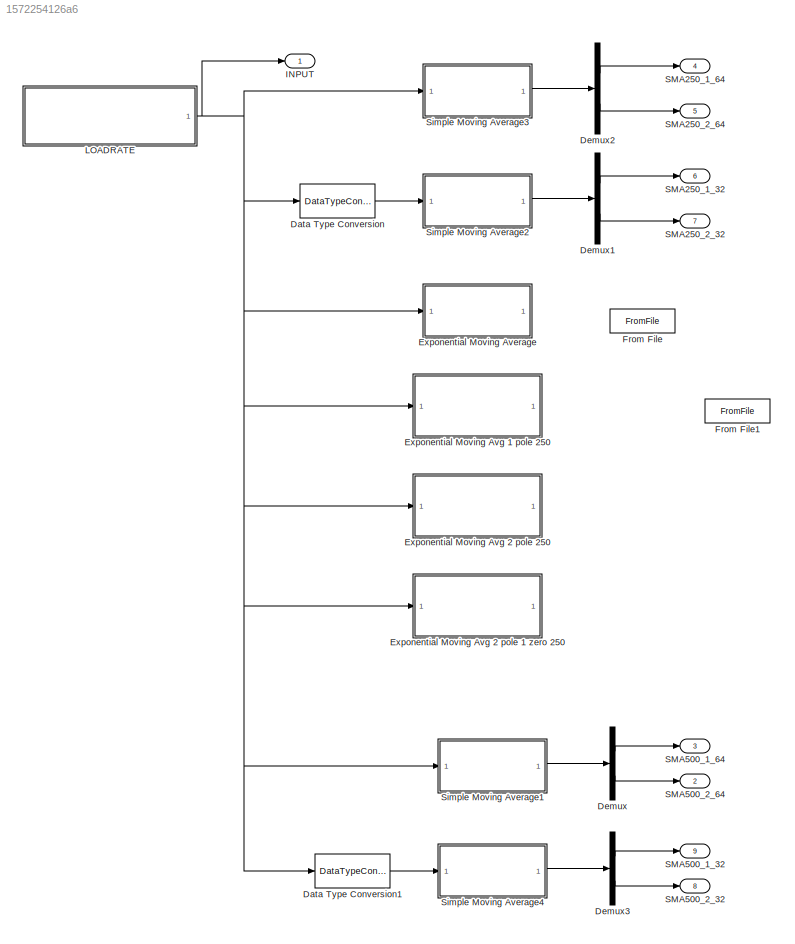
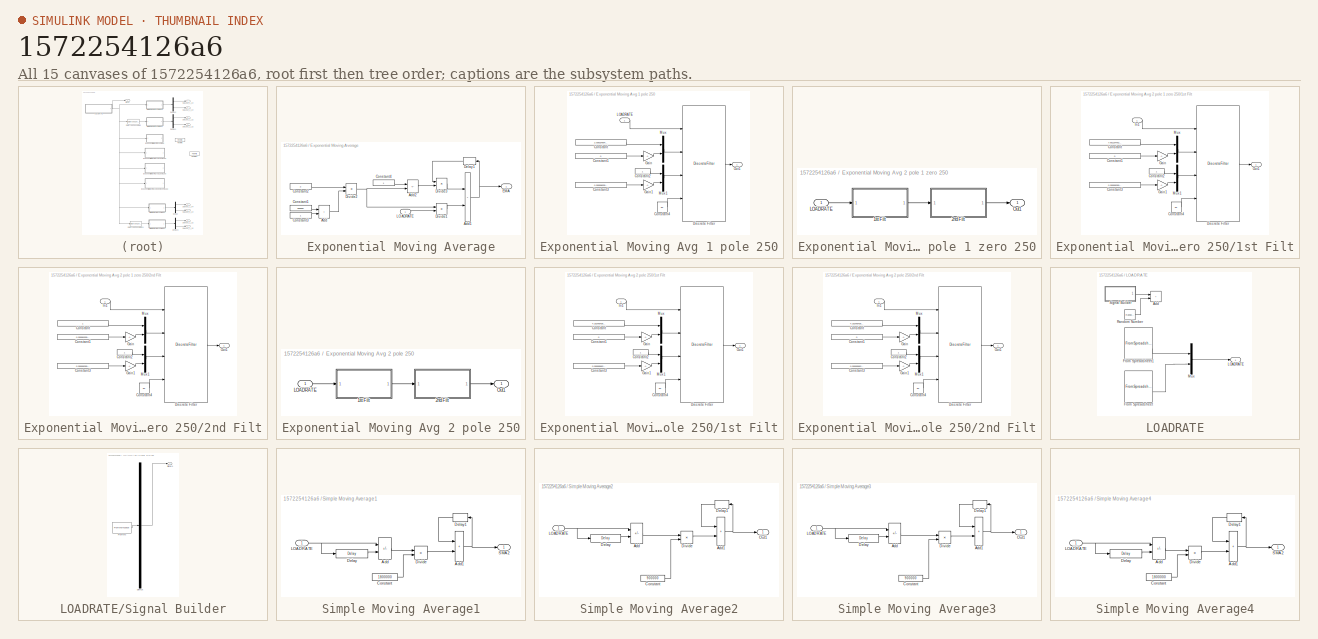
[diagram: thumbnail index - all 15 canvases of the model, root first then tree order]
MODEL slx_1572254126a6
KIND model
CONFIG AbsTol = auto
CONFIG EnableMultiTasking = off
CONFIG FixedStep = 1/3600
CONFIG MaxStep = auto
CONFIG MinStep = auto
CONFIG RelTol = 1e-3
CONFIG SampleTimeConstraint = Unconstrained
CONFIG SolverName = FixedStepAuto
CONFIG StartTime = 0.0
CONFIG StopTime = 2500
BLOCK [DataTypeConversion] Data Type Conversion
  OutDataTypeStr = single
  RndMeth = Floor
  SaturateOnIntegerOverflow = off
BLOCK [DataTypeConversion] Data Type Conversion1
  OutDataTypeStr = single
  RndMeth = Floor
  SaturateOnIntegerOverflow = off
BLOCK [Demux] Demux
  Outputs = 2
  Ports = [1, 2]
BLOCK [Demux] Demux1
  Outputs = 2
  Ports = [1, 2]
BLOCK [Demux] Demux2
  Outputs = 2
  Ports = [1, 2]
BLOCK [Demux] Demux3
  Outputs = 2
  Ports = [1, 2]
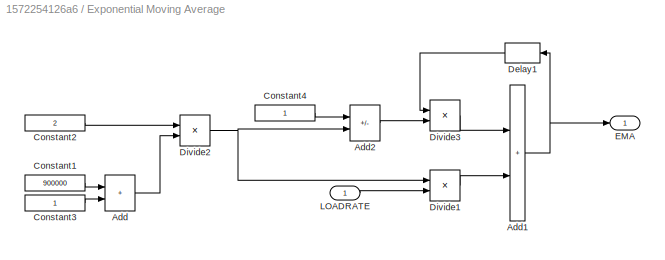
BLOCK [SubSystem] Exponential Moving Average
  Ports = [1, 1]
BLOCK [Sum] Exponential Moving Average/Add
  IconShape = rectangular
  Ports = [2, 1]
BLOCK [Sum] Exponential Moving Average/Add1
  IconShape = rectangular
  Ports = [2, 1]
BLOCK [Sum] Exponential Moving Average/Add2
  IconShape = rectangular
  Inputs = +-
  Ports = [2, 1]
BLOCK [Constant] Exponential Moving Average/Constant1
  OutDataTypeStr = single
  Value = 900000
BLOCK [Constant] Exponential Moving Average/Constant2
  OutDataTypeStr = single
  Value = 2
BLOCK [Constant] Exponential Moving Average/Constant3
  OutDataTypeStr = single
BLOCK [Constant] Exponential Moving Average/Constant4
  OutDataTypeStr = single
BLOCK [Delay] Exponential Moving Average/Delay1
  DelayLength = 1
  InitialCondition = 60
  InputPortMap = u0
  Ports = [1, 1]
BLOCK [Product] Exponential Moving Average/Divide1
  Inputs = **
  Ports = [2, 1]
BLOCK [Product] Exponential Moving Average/Divide2
  Inputs = */
  Ports = [2, 1]
BLOCK [Product] Exponential Moving Average/Divide3
  Inputs = **
  Ports = [2, 1]
BLOCK [Outport] Exponential Moving Average/EMA
BLOCK [Inport] Exponential Moving Average/LOADRATE
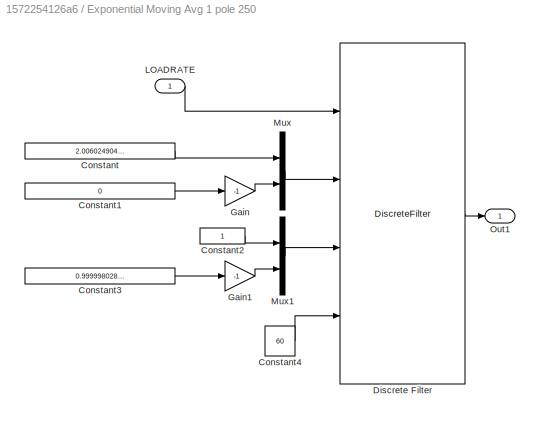
BLOCK [SubSystem] Exponential Moving Avg 1 pole 250
  Ports = [1, 1]
BLOCK [Constant] Exponential Moving Avg 1 pole 250/Constant
  Value = 2.006024904588585e-06
BLOCK [Constant] Exponential Moving Avg 1 pole 250/Constant1
  Value = 0
BLOCK [Constant] Exponential Moving Avg 1 pole 250/Constant2
BLOCK [Constant] Exponential Moving Avg 1 pole 250/Constant3
  Value = 0.999998028754491
BLOCK [Constant] Exponential Moving Avg 1 pole 250/Constant4
  Value = 60
BLOCK [DiscreteFilter] Exponential Moving Avg 1 pole 250/Discrete Filter
  CloseFcn = dspblkCoreblockFVToolHelper(gcbh,'close');
  CopyFcn = dspblkCoreblockFVToolHelper(gcbh,'copy');
  DeleteFcn = dspblkCoreblockFVToolHelper(gcbh,'close');
  DenominatorSource = Input port
  FilterStructure = Direct form II transposed
  InitialStatesSource = Input port
  InputPortMap = u0,p1,p3,p5
  LoadFcn = dspblkCoreblockFVToolHelper(gcbh,'load');
  ModelCloseFcn = dspblkCoreblockFVToolHelper(gcbh,'close');
  NumeratorSource = Input port
  Ports = [4, 1]
  PostSaveFcn = dspblkCoreblockFVToolHelper(gcbh,'postsave');
  PreSaveFcn = dspblkCoreblockFVToolHelper(gcbh,'presave');
  a0EqualsOne = on
BLOCK [Gain] Exponential Moving Avg 1 pole 250/Gain
  Gain = -1
BLOCK [Gain] Exponential Moving Avg 1 pole 250/Gain1
  Gain = -1
BLOCK [Inport] Exponential Moving Avg 1 pole 250/LOADRATE
BLOCK [Mux] Exponential Moving Avg 1 pole 250/Mux
  DisplayOption = bar
  Inputs = 2
  Ports = [2, 1]
BLOCK [Mux] Exponential Moving Avg 1 pole 250/Mux1
  DisplayOption = bar
  Inputs = 2
  Ports = [2, 1]
BLOCK [Outport] Exponential Moving Avg 1 pole 250/Out1
BLOCK [SubSystem] Exponential Moving Avg 2 pole 1 zero 250
  Ports = [1, 1]
BLOCK [SubSystem] Exponential Moving Avg 2 pole 1 zero 250/1st Filt
  Ports = [1, 1]
BLOCK [Constant] Exponential Moving Avg 2 pole 1 zero 250/1st Filt/Constant
  Value = 7.561164752514595e-07
BLOCK [Constant] Exponential Moving Avg 2 pole 1 zero 250/1st Filt/Constant1
  Value = 0
BLOCK [Constant] Exponential Moving Avg 2 pole 1 zero 250/1st Filt/Constant2
BLOCK [Constant] Exponential Moving Avg 2 pole 1 zero 250/1st Filt/Constant3
  Value = 0.999996289146252
BLOCK [Constant] Exponential Moving Avg 2 pole 1 zero 250/1st Filt/Constant4
  Value = 60
BLOCK [DiscreteFilter] Exponential Moving Avg 2 pole 1 zero 250/1st Filt/Discrete Filter
  CloseFcn = dspblkCoreblockFVToolHelper(gcbh,'close');
  CopyFcn = dspblkCoreblockFVToolHelper(gcbh,'copy');
  DeleteFcn = dspblkCoreblockFVToolHelper(gcbh,'close');
  DenominatorSource = Input port
  FilterStructure = Direct form II transposed
  InitialStatesSource = Input port
  InputPortMap = u0,p1,p3,p5
  LoadFcn = dspblkCoreblockFVToolHelper(gcbh,'load');
  ModelCloseFcn = dspblkCoreblockFVToolHelper(gcbh,'close');
  NumeratorSource = Input port
  Ports = [4, 1]
  PostSaveFcn = dspblkCoreblockFVToolHelper(gcbh,'postsave');
  PreSaveFcn = dspblkCoreblockFVToolHelper(gcbh,'presave');
  a0EqualsOne = on
BLOCK [Gain] Exponential Moving Avg 2 pole 1 zero 250/1st Filt/Gain
  Gain = -1
BLOCK [Gain] Exponential Moving Avg 2 pole 1 zero 250/1st Filt/Gain1
  Gain = -1
BLOCK [Inport] Exponential Moving Avg 2 pole 1 zero 250/1st Filt/In1
BLOCK [Mux] Exponential Moving Avg 2 pole 1 zero 250/1st Filt/Mux
  DisplayOption = bar
  Inputs = 2
  Ports = [2, 1]
BLOCK [Mux] Exponential Moving Avg 2 pole 1 zero 250/1st Filt/Mux1
  DisplayOption = bar
  Inputs = 2
  Ports = [2, 1]
BLOCK [Outport] Exponential Moving Avg 2 pole 1 zero 250/1st Filt/Out1
BLOCK [SubSystem] Exponential Moving Avg 2 pole 1 zero 250/2nd Filt
  Ports = [1, 1]
BLOCK [Constant] Exponential Moving Avg 2 pole 1 zero 250/2nd Filt/Constant
BLOCK [Constant] Exponential Moving Avg 2 pole 1 zero 250/2nd Filt/Constant1
  Value = 0.999981599305258
BLOCK [Constant] Exponential Moving Avg 2 pole 1 zero 250/2nd Filt/Constant2
BLOCK [Constant] Exponential Moving Avg 2 pole 1 zero 250/2nd Filt/Constant3
  Value = 0.999996289135185
BLOCK [Constant] Exponential Moving Avg 2 pole 1 zero 250/2nd Filt/Constant4
  Value = 60
BLOCK [DiscreteFilter] Exponential Moving Avg 2 pole 1 zero 250/2nd Filt/Discrete Filter
  CloseFcn = dspblkCoreblockFVToolHelper(gcbh,'close');
  CopyFcn = dspblkCoreblockFVToolHelper(gcbh,'copy');
  DeleteFcn = dspblkCoreblockFVToolHelper(gcbh,'close');
  DenominatorSource = Input port
  FilterStructure = Direct form II transposed
  InitialStatesSource = Input port
  InputPortMap = u0,p1,p3,p5
  LoadFcn = dspblkCoreblockFVToolHelper(gcbh,'load');
  ModelCloseFcn = dspblkCoreblockFVToolHelper(gcbh,'close');
  NumeratorSource = Input port
  Ports = [4, 1]
  PostSaveFcn = dspblkCoreblockFVToolHelper(gcbh,'postsave');
  PreSaveFcn = dspblkCoreblockFVToolHelper(gcbh,'presave');
  a0EqualsOne = on
BLOCK [Gain] Exponential Moving Avg 2 pole 1 zero 250/2nd Filt/Gain
  Gain = -1
BLOCK [Gain] Exponential Moving Avg 2 pole 1 zero 250/2nd Filt/Gain1
  Gain = -1
BLOCK [Inport] Exponential Moving Avg 2 pole 1 zero 250/2nd Filt/In1
BLOCK [Mux] Exponential Moving Avg 2 pole 1 zero 250/2nd Filt/Mux
  DisplayOption = bar
  Inputs = 2
  Ports = [2, 1]
BLOCK [Mux] Exponential Moving Avg 2 pole 1 zero 250/2nd Filt/Mux1
  DisplayOption = bar
  Inputs = 2
  Ports = [2, 1]
BLOCK [Outport] Exponential Moving Avg 2 pole 1 zero 250/2nd Filt/Out1
BLOCK [Inport] Exponential Moving Avg 2 pole 1 zero 250/LOADRATE
BLOCK [Outport] Exponential Moving Avg 2 pole 1 zero 250/Out1
BLOCK [SubSystem] Exponential Moving Avg 2 pole 250
  Ports = [1, 1]
BLOCK [SubSystem] Exponential Moving Avg 2 pole 250/1st Filt
  Ports = [1, 1]
BLOCK [Constant] Exponential Moving Avg 2 pole 250/1st Filt/Constant
  Value = 4.153755436559832e-06
BLOCK [Constant] Exponential Moving Avg 2 pole 250/1st Filt/Constant1
  Value = 0
BLOCK [Constant] Exponential Moving Avg 2 pole 250/1st Filt/Constant2
BLOCK [Constant] Exponential Moving Avg 2 pole 250/1st Filt/Constant3
  Value = 0.999995862663028
BLOCK [Constant] Exponential Moving Avg 2 pole 250/1st Filt/Constant4
  Value = 60
BLOCK [DiscreteFilter] Exponential Moving Avg 2 pole 250/1st Filt/Discrete Filter
  CloseFcn = dspblkCoreblockFVToolHelper(gcbh,'close');
  CopyFcn = dspblkCoreblockFVToolHelper(gcbh,'copy');
  DeleteFcn = dspblkCoreblockFVToolHelper(gcbh,'close');
  DenominatorSource = Input port
  FilterStructure = Direct form II transposed
  InitialStatesSource = Input port
  InputPortMap = u0,p1,p3,p5
  LoadFcn = dspblkCoreblockFVToolHelper(gcbh,'load');
  ModelCloseFcn = dspblkCoreblockFVToolHelper(gcbh,'close');
  NumeratorSource = Input port
  Ports = [4, 1]
  PostSaveFcn = dspblkCoreblockFVToolHelper(gcbh,'postsave');
  PreSaveFcn = dspblkCoreblockFVToolHelper(gcbh,'presave');
  a0EqualsOne = on
BLOCK [Gain] Exponential Moving Avg 2 pole 250/1st Filt/Gain
  Gain = -1
BLOCK [Gain] Exponential Moving Avg 2 pole 250/1st Filt/Gain1
  Gain = -1
BLOCK [Inport] Exponential Moving Avg 2 pole 250/1st Filt/In1
BLOCK [Mux] Exponential Moving Avg 2 pole 250/1st Filt/Mux
  DisplayOption = bar
  Inputs = 2
  Ports = [2, 1]
BLOCK [Mux] Exponential Moving Avg 2 pole 250/1st Filt/Mux1
  DisplayOption = bar
  Inputs = 2
  Ports = [2, 1]
BLOCK [Outport] Exponential Moving Avg 2 pole 250/1st Filt/Out1
BLOCK [SubSystem] Exponential Moving Avg 2 pole 250/2nd Filt
  Ports = [1, 1]
BLOCK [Constant] Exponential Moving Avg 2 pole 250/2nd Filt/Constant
  Value = 4.153755436559832e-06
BLOCK [Constant] Exponential Moving Avg 2 pole 250/2nd Filt/Constant1
  Value = 0
BLOCK [Constant] Exponential Moving Avg 2 pole 250/2nd Filt/Constant2
BLOCK [Constant] Exponential Moving Avg 2 pole 250/2nd Filt/Constant3
  Value = 0.999995862645184
BLOCK [Constant] Exponential Moving Avg 2 pole 250/2nd Filt/Constant4
  Value = 60
BLOCK [DiscreteFilter] Exponential Moving Avg 2 pole 250/2nd Filt/Discrete Filter
  CloseFcn = dspblkCoreblockFVToolHelper(gcbh,'close');
  CopyFcn = dspblkCoreblockFVToolHelper(gcbh,'copy');
  DeleteFcn = dspblkCoreblockFVToolHelper(gcbh,'close');
  DenominatorSource = Input port
  FilterStructure = Direct form II transposed
  InitialStatesSource = Input port
  InputPortMap = u0,p1,p3,p5
  LoadFcn = dspblkCoreblockFVToolHelper(gcbh,'load');
  ModelCloseFcn = dspblkCoreblockFVToolHelper(gcbh,'close');
  NumeratorSource = Input port
  Ports = [4, 1]
  PostSaveFcn = dspblkCoreblockFVToolHelper(gcbh,'postsave');
  PreSaveFcn = dspblkCoreblockFVToolHelper(gcbh,'presave');
  a0EqualsOne = on
BLOCK [Gain] Exponential Moving Avg 2 pole 250/2nd Filt/Gain
  Gain = -1
BLOCK [Gain] Exponential Moving Avg 2 pole 250/2nd Filt/Gain1
  Gain = -1
BLOCK [Inport] Exponential Moving Avg 2 pole 250/2nd Filt/In1
BLOCK [Mux] Exponential Moving Avg 2 pole 250/2nd Filt/Mux
  DisplayOption = bar
  Inputs = 2
  Ports = [2, 1]
BLOCK [Mux] Exponential Moving Avg 2 pole 250/2nd Filt/Mux1
  DisplayOption = bar
  Inputs = 2
  Ports = [2, 1]
BLOCK [Outport] Exponential Moving Avg 2 pole 250/2nd Filt/Out1
BLOCK [Inport] Exponential Moving Avg 2 pole 250/LOADRATE
BLOCK [Outport] Exponential Moving Avg 2 pole 250/Out1
BLOCK [FromFile] From File
  SampleTime = 0
BLOCK [FromFile] From File1
  SampleTime = 0
BLOCK [Outport] INPUT
BLOCK [SubSystem] LOADRATE
  Ports = [0, 1]
BLOCK [Sum] LOADRATE/Add
  Commented = on
  IconShape = rectangular
  Ports = [2, 1]
BLOCK [FromSpreadsheet] LOADRATE/From Spreadsheet
  FileName = <userpath>\OneDrive\Documents\MATLAB\Filter\Ransomes_NRTC-Full.xlsx
  Ports = [0, 2]
  SampleTime = 1/3600
  TreatFirstColumnAs = Data
BLOCK [FromSpreadsheet] LOADRATE/From Spreadsheet1
  FileName = <userpath>\OneDrive\Documents\MATLAB\Filter\NRTC_3.xlsx
  OutDataTypeStr = double
  Ports = [0, 2]
  SampleTime = 1/3600
  SheetName = NRTC_3
  TreatFirstColumnAs = Data
BLOCK [Outport] LOADRATE/LOADRATE
  LockScale = on
  SampleTime = 1/3600
BLOCK [Mux] LOADRATE/Mux
  DisplayOption = bar
  Inputs = 2
  Ports = [2, 1]
BLOCK [RandomNumber] LOADRATE/Random Number
  Commented = on
  Mean = 5
  SampleTime = 1/3600
BLOCK [SubSystem] LOADRATE/Signal Builder
  ClipboardFcn = sigbuilder_block('clipboard');
  CloseFcn = sigbuilder_block('close');
  Commented = on
  ContinueFcn = sigbuilder_block('continue');
  CopyFcn = sigbuilder_block('copy');
  DeleteFcn = sigbuilder_block('delete');
  LoadFcn = sigbuilder_block('load');
  MaskHideContents = on
  ModelCloseFcn = sigbuilder_block('modelClose');
  NameChangeFcn = sigbuilder_block('namechange');
  OpenFcn = sigbuilder_block('open',[6 36 1428 675.75 ]);
  PauseFcn = sigbuilder_block('pause');
  Ports = [0, 1]
  PreSaveFcn = sigbuilder_block('preSave');
  StartFcn = sigbuilder_block('start');
  StopFcn = sigbuilder_block('stop');
  Tag = STV Subsys
BLOCK [Demux] LOADRATE/Signal Builder/Demux
  DisplayOption = none
  Outputs = 1
  Ports = [1, 1]
  Tag = STV Demux
BLOCK [FromWorkspace] LOADRATE/Signal Builder/FromWs
  Tag = STV FromWs
  VariableName = tuvar
BLOCK [Outport] LOADRATE/Signal Builder/Signal 1
  Tag = STV Outport
BLOCK [Outport] SMA250_1_32
  Port = 6
BLOCK [Outport] SMA250_1_64
  Port = 4
BLOCK [Outport] SMA250_2_32
  Port = 7
BLOCK [Outport] SMA250_2_64
  Port = 5
BLOCK [Outport] SMA500_1_32
  Port = 9
BLOCK [Outport] SMA500_1_64
  Port = 3
BLOCK [Outport] SMA500_2_32
  Port = 8
BLOCK [Outport] SMA500_2_64
  Port = 2
BLOCK [SubSystem] Simple Moving Average1
  Ports = [1, 1]
BLOCK [Sum] Simple Moving Average1/Add
  IconShape = rectangular
  Inputs = +-
  Ports = [2, 1]
BLOCK [Sum] Simple Moving Average1/Add1
  IconShape = rectangular
  Ports = [2, 1]
BLOCK [Constant] Simple Moving Average1/Constant
  OutDataTypeStr = single
  Value = 1800000
BLOCK [Delay] Simple Moving Average1/Delay
  DelayLength = 1800000
  InitialCondition = 60
  InputPortMap = u0
  Ports = [1, 1]
BLOCK [Delay] Simple Moving Average1/Delay1
  DelayLength = 1
  InitialCondition = 60
  InputPortMap = u0
  Ports = [1, 1]
BLOCK [Product] Simple Moving Average1/Divide
  Inputs = */
  Ports = [2, 1]
BLOCK [Inport] Simple Moving Average1/LOADRATE
BLOCK [Outport] Simple Moving Average1/SMA2
BLOCK [SubSystem] Simple Moving Average2
  Ports = [1, 1]
BLOCK [Sum] Simple Moving Average2/Add
  IconShape = rectangular
  Inputs = +-
  Ports = [2, 1]
BLOCK [Sum] Simple Moving Average2/Add1
  IconShape = rectangular
  Ports = [2, 1]
BLOCK [Constant] Simple Moving Average2/Constant
  OutDataTypeStr = Inherit: Inherit via back propagation
  Value = 900000
BLOCK [Delay] Simple Moving Average2/Delay
  DelayLength = 900000
  InitialCondition = 60
  InputPortMap = u0
  Ports = [1, 1]
BLOCK [Delay] Simple Moving Average2/Delay1
  DelayLength = 1
  InitialCondition = 60
  InputPortMap = u0
  Ports = [1, 1]
BLOCK [Product] Simple Moving Average2/Divide
  Inputs = */
  Ports = [2, 1]
BLOCK [Inport] Simple Moving Average2/LOADRATE
BLOCK [Outport] Simple Moving Average2/Out1
BLOCK [SubSystem] Simple Moving Average3
  Ports = [1, 1]
BLOCK [Sum] Simple Moving Average3/Add
  IconShape = rectangular
  Inputs = +-
  Ports = [2, 1]
BLOCK [Sum] Simple Moving Average3/Add1
  IconShape = rectangular
  Ports = [2, 1]
BLOCK [Constant] Simple Moving Average3/Constant
  OutDataTypeStr = Inherit: Inherit via back propagation
  Value = 900000
BLOCK [Delay] Simple Moving Average3/Delay
  DelayLength = 900000
  InitialCondition = 60
  InputPortMap = u0
  Ports = [1, 1]
BLOCK [Delay] Simple Moving Average3/Delay1
  DelayLength = 1
  InitialCondition = 60
  InputPortMap = u0
  Ports = [1, 1]
BLOCK [Product] Simple Moving Average3/Divide
  Inputs = */
  Ports = [2, 1]
BLOCK [Inport] Simple Moving Average3/LOADRATE
BLOCK [Outport] Simple Moving Average3/Out1
BLOCK [SubSystem] Simple Moving Average4
  Ports = [1, 1]
BLOCK [Sum] Simple Moving Average4/Add
  IconShape = rectangular
  Inputs = +-
  Ports = [2, 1]
BLOCK [Sum] Simple Moving Average4/Add1
  IconShape = rectangular
  Ports = [2, 1]
BLOCK [Constant] Simple Moving Average4/Constant
  OutDataTypeStr = single
  Value = 1800000
BLOCK [Delay] Simple Moving Average4/Delay
  DelayLength = 1800000
  InitialCondition = 60
  InputPortMap = u0
  Ports = [1, 1]
BLOCK [Delay] Simple Moving Average4/Delay1
  DelayLength = 1
  InitialCondition = 60
  InputPortMap = u0
  Ports = [1, 1]
BLOCK [Product] Simple Moving Average4/Divide
  Inputs = */
  Ports = [2, 1]
BLOCK [Inport] Simple Moving Average4/LOADRATE
BLOCK [Outport] Simple Moving Average4/SMA2
LINE Data Type Conversion1:1 -> Simple Moving Average4:1
LINE Data Type Conversion:1 -> Simple Moving Average2:1
LINE Demux1:1 -> SMA250_1_32:1
LINE Demux1:2 -> SMA250_2_32:1
LINE Demux2:1 -> SMA250_1_64:1
LINE Demux2:2 -> SMA250_2_64:1
LINE Demux3:1 -> SMA500_1_32:1
LINE Demux3:2 -> SMA500_2_32:1
LINE Demux:1 -> SMA500_1_64:1
LINE Demux:2 -> SMA500_2_64:1
NET Exponential Moving Average/Add1:1 -> Exponential Moving Average/Delay1:1, Exponential Moving Average/EMA:1
LINE Exponential Moving Average/Add2:1 -> Exponential Moving Average/Divide3:2
LINE Exponential Moving Average/Add:1 -> Exponential Moving Average/Divide2:2
LINE Exponential Moving Average/Constant1:1 -> Exponential Moving Average/Add:1
LINE Exponential Moving Average/Constant2:1 -> Exponential Moving Average/Divide2:1
LINE Exponential Moving Average/Constant3:1 -> Exponential Moving Average/Add:2
LINE Exponential Moving Average/Constant4:1 -> Exponential Moving Average/Add2:1
LINE Exponential Moving Average/Delay1:1 -> Exponential Moving Average/Divide3:1
LINE Exponential Moving Average/Divide1:1 -> Exponential Moving Average/Add1:2
NET Exponential Moving Average/Divide2:1 -> Exponential Moving Average/Add2:2, Exponential Moving Average/Divide1:1
LINE Exponential Moving Average/Divide3:1 -> Exponential Moving Average/Add1:1
LINE Exponential Moving Average/LOADRATE:1 -> Exponential Moving Average/Divide1:2
LINE Exponential Moving Avg 1 pole 250/Constant1:1 -> Exponential Moving Avg 1 pole 250/Gain:1
LINE Exponential Moving Avg 1 pole 250/Constant2:1 -> Exponential Moving Avg 1 pole 250/Mux1:1
LINE Exponential Moving Avg 1 pole 250/Constant3:1 -> Exponential Moving Avg 1 pole 250/Gain1:1
LINE Exponential Moving Avg 1 pole 250/Constant4:1 -> Exponential Moving Avg 1 pole 250/Discrete Filter:4
LINE Exponential Moving Avg 1 pole 250/Constant:1 -> Exponential Moving Avg 1 pole 250/Mux:1
LINE Exponential Moving Avg 1 pole 250/Discrete Filter:1 -> Exponential Moving Avg 1 pole 250/Out1:1
LINE Exponential Moving Avg 1 pole 250/Gain1:1 -> Exponential Moving Avg 1 pole 250/Mux1:2
LINE Exponential Moving Avg 1 pole 250/Gain:1 -> Exponential Moving Avg 1 pole 250/Mux:2
LINE Exponential Moving Avg 1 pole 250/LOADRATE:1 -> Exponential Moving Avg 1 pole 250/Discrete Filter:1
LINE Exponential Moving Avg 1 pole 250/Mux1:1 -> Exponential Moving Avg 1 pole 250/Discrete Filter:3
LINE Exponential Moving Avg 1 pole 250/Mux:1 -> Exponential Moving Avg 1 pole 250/Discrete Filter:2
LINE Exponential Moving Avg 2 pole 1 zero 250/1st Filt/Constant1:1 -> Exponential Moving Avg 2 pole 1 zero 250/1st Filt/Gain:1
LINE Exponential Moving Avg 2 pole 1 zero 250/1st Filt/Constant2:1 -> Exponential Moving Avg 2 pole 1 zero 250/1st Filt/Mux1:1
LINE Exponential Moving Avg 2 pole 1 zero 250/1st Filt/Constant3:1 -> Exponential Moving Avg 2 pole 1 zero 250/1st Filt/Gain1:1
LINE Exponential Moving Avg 2 pole 1 zero 250/1st Filt/Constant4:1 -> Exponential Moving Avg 2 pole 1 zero 250/1st Filt/Discrete Filter:4
LINE Exponential Moving Avg 2 pole 1 zero 250/1st Filt/Constant:1 -> Exponential Moving Avg 2 pole 1 zero 250/1st Filt/Mux:1
LINE Exponential Moving Avg 2 pole 1 zero 250/1st Filt/Discrete Filter:1 -> Exponential Moving Avg 2 pole 1 zero 250/1st Filt/Out1:1
LINE Exponential Moving Avg 2 pole 1 zero 250/1st Filt/Gain1:1 -> Exponential Moving Avg 2 pole 1 zero 250/1st Filt/Mux1:2
LINE Exponential Moving Avg 2 pole 1 zero 250/1st Filt/Gain:1 -> Exponential Moving Avg 2 pole 1 zero 250/1st Filt/Mux:2
LINE Exponential Moving Avg 2 pole 1 zero 250/1st Filt/In1:1 -> Exponential Moving Avg 2 pole 1 zero 250/1st Filt/Discrete Filter:1
LINE Exponential Moving Avg 2 pole 1 zero 250/1st Filt/Mux1:1 -> Exponential Moving Avg 2 pole 1 zero 250/1st Filt/Discrete Filter:3
LINE Exponential Moving Avg 2 pole 1 zero 250/1st Filt/Mux:1 -> Exponential Moving Avg 2 pole 1 zero 250/1st Filt/Discrete Filter:2
LINE Exponential Moving Avg 2 pole 1 zero 250/1st Filt:1 -> Exponential Moving Avg 2 pole 1 zero 250/2nd Filt:1
LINE Exponential Moving Avg 2 pole 1 zero 250/2nd Filt/Constant1:1 -> Exponential Moving Avg 2 pole 1 zero 250/2nd Filt/Gain:1
LINE Exponential Moving Avg 2 pole 1 zero 250/2nd Filt/Constant2:1 -> Exponential Moving Avg 2 pole 1 zero 250/2nd Filt/Mux1:1
LINE Exponential Moving Avg 2 pole 1 zero 250/2nd Filt/Constant3:1 -> Exponential Moving Avg 2 pole 1 zero 250/2nd Filt/Gain1:1
LINE Exponential Moving Avg 2 pole 1 zero 250/2nd Filt/Constant4:1 -> Exponential Moving Avg 2 pole 1 zero 250/2nd Filt/Discrete Filter:4
LINE Exponential Moving Avg 2 pole 1 zero 250/2nd Filt/Constant:1 -> Exponential Moving Avg 2 pole 1 zero 250/2nd Filt/Mux:1
LINE Exponential Moving Avg 2 pole 1 zero 250/2nd Filt/Discrete Filter:1 -> Exponential Moving Avg 2 pole 1 zero 250/2nd Filt/Out1:1
LINE Exponential Moving Avg 2 pole 1 zero 250/2nd Filt/Gain1:1 -> Exponential Moving Avg 2 pole 1 zero 250/2nd Filt/Mux1:2
LINE Exponential Moving Avg 2 pole 1 zero 250/2nd Filt/Gain:1 -> Exponential Moving Avg 2 pole 1 zero 250/2nd Filt/Mux:2
LINE Exponential Moving Avg 2 pole 1 zero 250/2nd Filt/In1:1 -> Exponential Moving Avg 2 pole 1 zero 250/2nd Filt/Discrete Filter:1
LINE Exponential Moving Avg 2 pole 1 zero 250/2nd Filt/Mux1:1 -> Exponential Moving Avg 2 pole 1 zero 250/2nd Filt/Discrete Filter:3
LINE Exponential Moving Avg 2 pole 1 zero 250/2nd Filt/Mux:1 -> Exponential Moving Avg 2 pole 1 zero 250/2nd Filt/Discrete Filter:2
LINE Exponential Moving Avg 2 pole 1 zero 250/2nd Filt:1 -> Exponential Moving Avg 2 pole 1 zero 250/Out1:1
LINE Exponential Moving Avg 2 pole 1 zero 250/LOADRATE:1 -> Exponential Moving Avg 2 pole 1 zero 250/1st Filt:1
LINE Exponential Moving Avg 2 pole 250/1st Filt/Constant1:1 -> Exponential Moving Avg 2 pole 250/1st Filt/Gain:1
LINE Exponential Moving Avg 2 pole 250/1st Filt/Constant2:1 -> Exponential Moving Avg 2 pole 250/1st Filt/Mux1:1
LINE Exponential Moving Avg 2 pole 250/1st Filt/Constant3:1 -> Exponential Moving Avg 2 pole 250/1st Filt/Gain1:1
LINE Exponential Moving Avg 2 pole 250/1st Filt/Constant4:1 -> Exponential Moving Avg 2 pole 250/1st Filt/Discrete Filter:4
LINE Exponential Moving Avg 2 pole 250/1st Filt/Constant:1 -> Exponential Moving Avg 2 pole 250/1st Filt/Mux:1
LINE Exponential Moving Avg 2 pole 250/1st Filt/Discrete Filter:1 -> Exponential Moving Avg 2 pole 250/1st Filt/Out1:1
LINE Exponential Moving Avg 2 pole 250/1st Filt/Gain1:1 -> Exponential Moving Avg 2 pole 250/1st Filt/Mux1:2
LINE Exponential Moving Avg 2 pole 250/1st Filt/Gain:1 -> Exponential Moving Avg 2 pole 250/1st Filt/Mux:2
LINE Exponential Moving Avg 2 pole 250/1st Filt/In1:1 -> Exponential Moving Avg 2 pole 250/1st Filt/Discrete Filter:1
LINE Exponential Moving Avg 2 pole 250/1st Filt/Mux1:1 -> Exponential Moving Avg 2 pole 250/1st Filt/Discrete Filter:3
LINE Exponential Moving Avg 2 pole 250/1st Filt/Mux:1 -> Exponential Moving Avg 2 pole 250/1st Filt/Discrete Filter:2
LINE Exponential Moving Avg 2 pole 250/1st Filt:1 -> Exponential Moving Avg 2 pole 250/2nd Filt:1
LINE Exponential Moving Avg 2 pole 250/2nd Filt/Constant1:1 -> Exponential Moving Avg 2 pole 250/2nd Filt/Gain:1
LINE Exponential Moving Avg 2 pole 250/2nd Filt/Constant2:1 -> Exponential Moving Avg 2 pole 250/2nd Filt/Mux1:1
LINE Exponential Moving Avg 2 pole 250/2nd Filt/Constant3:1 -> Exponential Moving Avg 2 pole 250/2nd Filt/Gain1:1
LINE Exponential Moving Avg 2 pole 250/2nd Filt/Constant4:1 -> Exponential Moving Avg 2 pole 250/2nd Filt/Discrete Filter:4
LINE Exponential Moving Avg 2 pole 250/2nd Filt/Constant:1 -> Exponential Moving Avg 2 pole 250/2nd Filt/Mux:1
LINE Exponential Moving Avg 2 pole 250/2nd Filt/Discrete Filter:1 -> Exponential Moving Avg 2 pole 250/2nd Filt/Out1:1
LINE Exponential Moving Avg 2 pole 250/2nd Filt/Gain1:1 -> Exponential Moving Avg 2 pole 250/2nd Filt/Mux1:2
LINE Exponential Moving Avg 2 pole 250/2nd Filt/Gain:1 -> Exponential Moving Avg 2 pole 250/2nd Filt/Mux:2
LINE Exponential Moving Avg 2 pole 250/2nd Filt/In1:1 -> Exponential Moving Avg 2 pole 250/2nd Filt/Discrete Filter:1
LINE Exponential Moving Avg 2 pole 250/2nd Filt/Mux1:1 -> Exponential Moving Avg 2 pole 250/2nd Filt/Discrete Filter:3
LINE Exponential Moving Avg 2 pole 250/2nd Filt/Mux:1 -> Exponential Moving Avg 2 pole 250/2nd Filt/Discrete Filter:2
LINE Exponential Moving Avg 2 pole 250/2nd Filt:1 -> Exponential Moving Avg 2 pole 250/Out1:1
LINE Exponential Moving Avg 2 pole 250/LOADRATE:1 -> Exponential Moving Avg 2 pole 250/1st Filt:1
LINE LOADRATE/From Spreadsheet1:2 -> LOADRATE/Mux:1
LINE LOADRATE/From Spreadsheet:2 -> LOADRATE/Mux:2
LINE LOADRATE/Mux:1 -> LOADRATE/LOADRATE:1
LINE LOADRATE/Random Number:1 -> LOADRATE/Add:2
LINE LOADRATE/Signal Builder:1 -> LOADRATE/Add:1
NET LOADRATE:1 -> Data Type Conversion1:1, Data Type Conversion:1, Exponential Moving Average:1, Exponential Moving Avg 1 pole 250:1, Exponential Moving Avg 2 pole 1 zero 250:1, Exponential Moving Avg 2 pole 250:1, INPUT:1, Simple Moving Average1:1, Simple Moving Average3:1
NET Simple Moving Average1/Add1:1 -> Simple Moving Average1/Delay1:1, Simple Moving Average1/SMA2:1
LINE Simple Moving Average1/Add:1 -> Simple Moving Average1/Divide:1
LINE Simple Moving Average1/Constant:1 -> Simple Moving Average1/Divide:2
LINE Simple Moving Average1/Delay1:1 -> Simple Moving Average1/Add1:1
LINE Simple Moving Average1/Delay:1 -> Simple Moving Average1/Add:2
LINE Simple Moving Average1/Divide:1 -> Simple Moving Average1/Add1:2
NET Simple Moving Average1/LOADRATE:1 -> Simple Moving Average1/Add:1, Simple Moving Average1/Delay:1
LINE Simple Moving Average1:1 -> Demux:1
NET Simple Moving Average2/Add1:1 -> Simple Moving Average2/Delay1:1, Simple Moving Average2/Out1:1
LINE Simple Moving Average2/Add:1 -> Simple Moving Average2/Divide:1
LINE Simple Moving Average2/Constant:1 -> Simple Moving Average2/Divide:2
LINE Simple Moving Average2/Delay1:1 -> Simple Moving Average2/Add1:1
LINE Simple Moving Average2/Delay:1 -> Simple Moving Average2/Add:2
LINE Simple Moving Average2/Divide:1 -> Simple Moving Average2/Add1:2
NET Simple Moving Average2/LOADRATE:1 -> Simple Moving Average2/Add:1, Simple Moving Average2/Delay:1
LINE Simple Moving Average2:1 -> Demux1:1
NET Simple Moving Average3/Add1:1 -> Simple Moving Average3/Delay1:1, Simple Moving Average3/Out1:1
LINE Simple Moving Average3/Add:1 -> Simple Moving Average3/Divide:1
LINE Simple Moving Average3/Constant:1 -> Simple Moving Average3/Divide:2
LINE Simple Moving Average3/Delay1:1 -> Simple Moving Average3/Add1:1
LINE Simple Moving Average3/Delay:1 -> Simple Moving Average3/Add:2
LINE Simple Moving Average3/Divide:1 -> Simple Moving Average3/Add1:2
NET Simple Moving Average3/LOADRATE:1 -> Simple Moving Average3/Add:1, Simple Moving Average3/Delay:1
LINE Simple Moving Average3:1 -> Demux2:1
NET Simple Moving Average4/Add1:1 -> Simple Moving Average4/Delay1:1, Simple Moving Average4/SMA2:1
LINE Simple Moving Average4/Add:1 -> Simple Moving Average4/Divide:1
LINE Simple Moving Average4/Constant:1 -> Simple Moving Average4/Divide:2
LINE Simple Moving Average4/Delay1:1 -> Simple Moving Average4/Add1:1
LINE Simple Moving Average4/Delay:1 -> Simple Moving Average4/Add:2
LINE Simple Moving Average4/Divide:1 -> Simple Moving Average4/Add1:2
NET Simple Moving Average4/LOADRATE:1 -> Simple Moving Average4/Add:1, Simple Moving Average4/Delay:1
LINE Simple Moving Average4:1 -> Demux3:1
note: NET lines group one-source signal fan-out (src -> all destinations, sorted); 1:1 wires keep LINE
